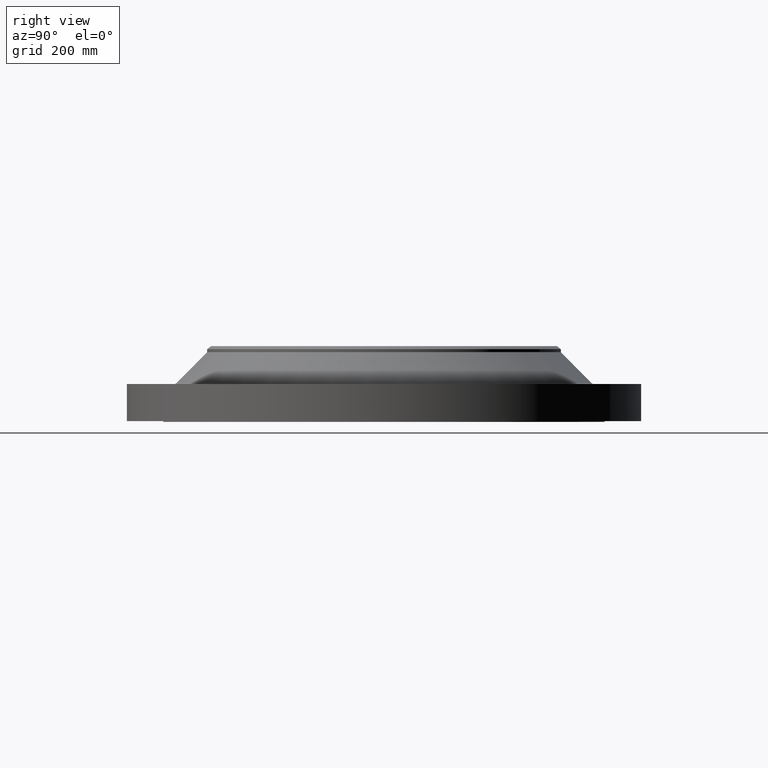
[diagram: clean part render]
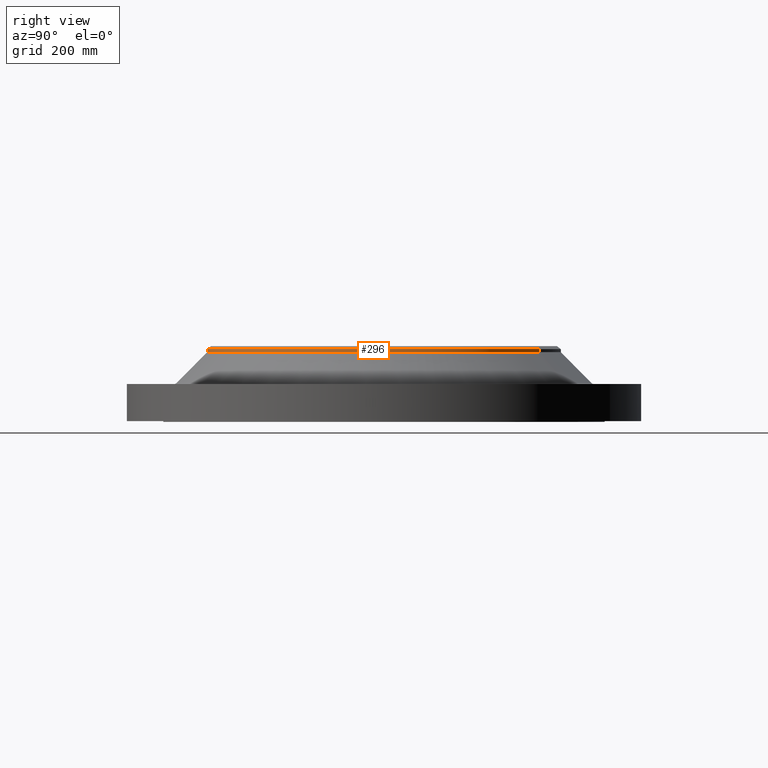
[diagram: same view with one face highlighted and labeled with its STEP entity id]
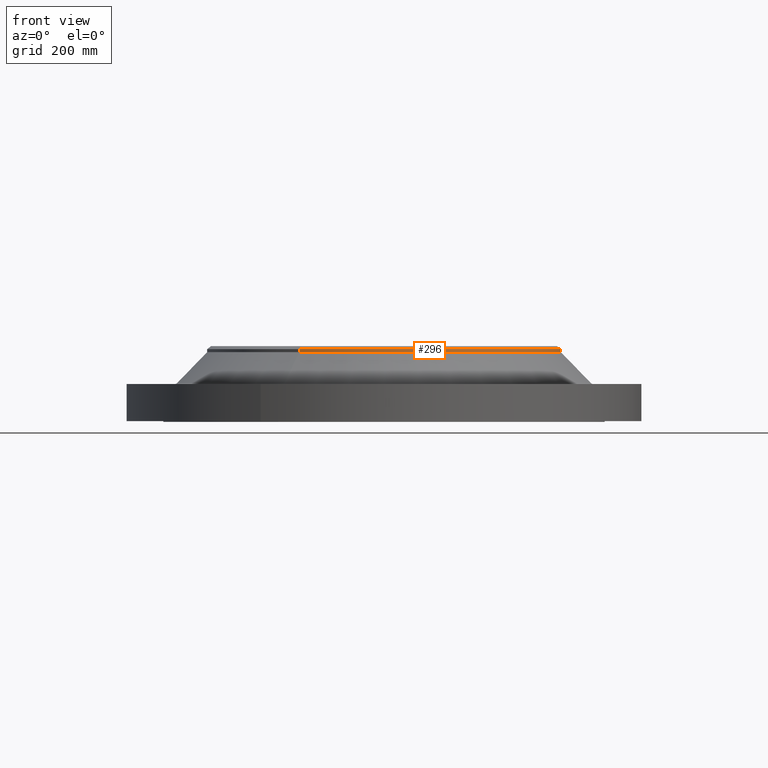
[diagram: same view with one face highlighted and labeled with its STEP entity id]
A machine part, right view. The second image highlights one B-rep face of the part: STEP entity #296.
A second angle (front view) of the same face is appended — the face is thin or edge-on in the first view.
In plain terms, the highlighted cylindrical surface (partial cylindrical patch) has radius 355.6 mm, axis along (0, 0, -1).
Its self-contained STEP definition (entity closure, byte-faithful):
#232=CARTESIAN_POINT('Vertex',(170.483721528,312.068359009,138.785342033)) ;
#235=CARTESIAN_POINT('Axis2P3D Location',(0.,0.,138.785342033)) ;
#239=CARTESIAN_POINT('Vertex',(-170.483721528,-312.068359009,138.785342033)) ;
#266=CARTESIAN_POINT('Axis2P3D Location',(0.,0.,75.9142500003)) ;
#271=CARTESIAN_POINT('Line Origine',(-170.483721528,-312.068359009,146.100671017)) ;
#275=CARTESIAN_POINT('Vertex',(-170.483721528,-312.068359009,144.785342033)) ;
#278=CARTESIAN_POINT('Line Origine',(170.483721528,312.068359009,146.100671017)) ;
#282=CARTESIAN_POINT('Vertex',(170.483721528,312.068359009,144.785342033)) ;
#285=CARTESIAN_POINT('Axis2P3D Location',(0.,0.,144.785342033)) ;
#236=DIRECTION('Axis2P3D Direction',(0.,0.,-1.)) ;
#267=DIRECTION('Axis2P3D Direction',(0.,0.,-1.)) ;
#268=DIRECTION('Axis2P3D XDirection',(0.479425538604,0.87758256189,0.)) ;
#272=DIRECTION('Vector Direction',(0.,0.,-1.)) ;
#279=DIRECTION('Vector Direction',(0.,0.,-1.)) ;
#286=DIRECTION('Axis2P3D Direction',(0.,0.,-1.)) ;
#237=AXIS2_PLACEMENT_3D('Circle Axis2P3D',#235,#236,$) ;
#269=AXIS2_PLACEMENT_3D('Cylinder Axis2P3D',#266,#267,#268) ;
#287=AXIS2_PLACEMENT_3D('Circle Axis2P3D',#285,#286,$) ;
#291=ORIENTED_EDGE('',*,*,#277,.F.) ;
#292=ORIENTED_EDGE('',*,*,#241,.F.) ;
#293=ORIENTED_EDGE('',*,*,#284,.T.) ;
#294=ORIENTED_EDGE('',*,*,#289,.T.) ;
#273=VECTOR('Line Direction',#272,1.) ;
#280=VECTOR('Line Direction',#279,1.) ;
#296=ADVANCED_FACE('PartBody',(#295),#270,.T.) ;
#238=CIRCLE('generated circle',#237,355.600000001) ;
#288=CIRCLE('generated circle',#287,355.600000001) ;
#270=CYLINDRICAL_SURFACE('generated cylinder',#269,355.600000001) ;
#241=EDGE_CURVE('',#233,#240,#238,.T.) ;
#277=EDGE_CURVE('',#240,#276,#274,.F.) ;
#284=EDGE_CURVE('',#233,#283,#281,.F.) ;
#289=EDGE_CURVE('',#283,#276,#288,.T.) ;
#290=EDGE_LOOP('',(#291,#292,#293,#294)) ;
#295=FACE_OUTER_BOUND('',#290,.T.) ;
#274=LINE('Line',#271,#273) ;
#281=LINE('Line',#278,#280) ;
#233=VERTEX_POINT('',#232) ;
#240=VERTEX_POINT('',#239) ;
#276=VERTEX_POINT('',#275) ;
#283=VERTEX_POINT('',#282) ;